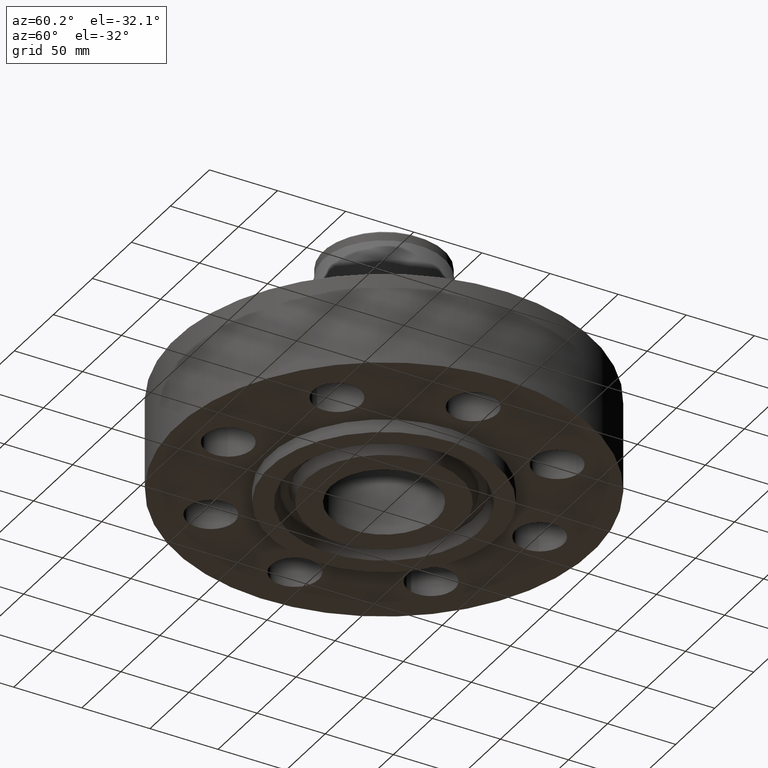
[diagram: clean part render]
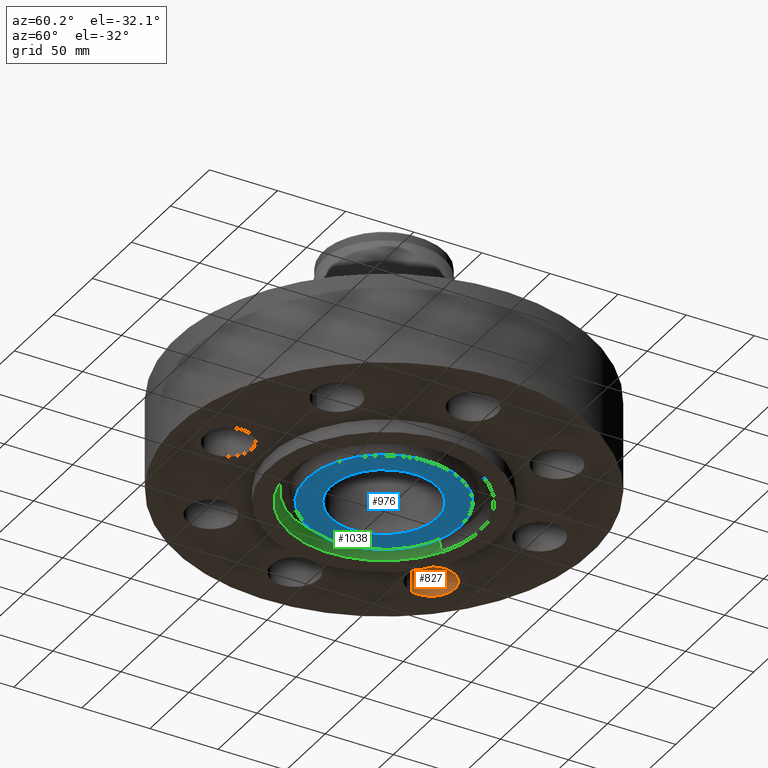
[diagram: same view with three faces highlighted in distinct colors, each labeled with its STEP entity id]
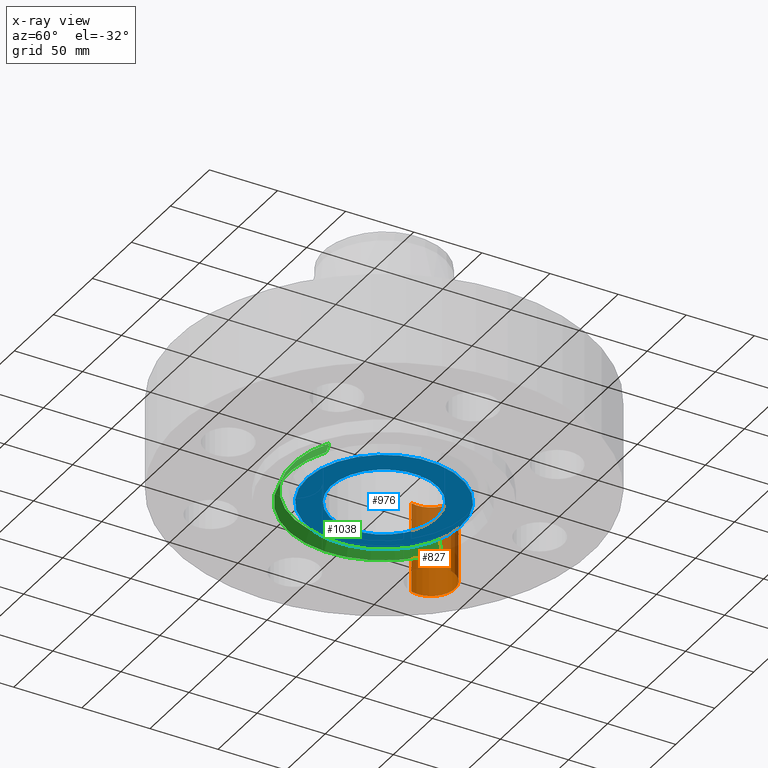
[diagram: x-ray of the same camera — body ghosted, the three highlighted faces saturated]
A machine part, auxiliary view with three faces highlighted in distinct colors.
The next image is the same camera in x-ray (body ghosted, the three faces saturated) — at least one of them is partly hidden behind the body in this view.
Their STEP definitions:

[orange] entity #827 — the highlighted cylindrical surface (edge-blend (fillet) strip) has radius 17.526 mm, axis along (0, 0, -1).
#608=AXIS2_PLACEMENT_3D('Circle Axis2P3D',#606,#607,$) ;
#800=AXIS2_PLACEMENT_3D('Cylinder Axis2P3D',#797,#798,#799) ;
#818=AXIS2_PLACEMENT_3D('Circle Axis2P3D',#816,#817,$) ;
#606=CARTESIAN_POINT('Axis2P3D Location',(-3.18198051535,3.18198051535,0.)) ;
#610=CARTESIAN_POINT('Vertex',(-3.84406976004,2.98771823886,0.)) ;
#612=CARTESIAN_POINT('Vertex',(-2.51989127066,3.37624279184,0.)) ;
#797=CARTESIAN_POINT('Axis2P3D Location',(-3.18198051535,3.18198051535,2.61606299214)) ;
#802=CARTESIAN_POINT('Line Origine',(-3.84406976004,2.98771823886,1.31000000001)) ;
#806=CARTESIAN_POINT('Vertex',(-3.84406976004,2.98771823886,2.62000000001)) ;
#809=CARTESIAN_POINT('Line Origine',(-2.51989127066,3.37624279184,1.31000000001)) ;
#813=CARTESIAN_POINT('Vertex',(-2.51989127066,3.37624279184,2.62000000001)) ;
#816=CARTESIAN_POINT('Axis2P3D Location',(-3.18198051535,3.18198051535,2.62000000001)) ;
#607=DIRECTION('Axis2P3D Direction',(0.,0.,-0.0393700787402)) ;
#798=DIRECTION('Axis2P3D Direction',(0.,0.,-0.0393700787402)) ;
#799=DIRECTION('Axis2P3D XDirection',(0.0377775444876,0.0110842335096,0.)) ;
#803=DIRECTION('Vector Direction',(0.,0.,-0.0393700787402)) ;
#810=DIRECTION('Vector Direction',(0.,0.,-0.0393700787402)) ;
#817=DIRECTION('Axis2P3D Direction',(0.,0.,-0.0393700787402)) ;
#804=VECTOR('Line Direction',#803,0.0393700787402) ;
#811=VECTOR('Line Direction',#810,0.0393700787402) ;
#822=ORIENTED_EDGE('',*,*,#808,.F.) ;
#823=ORIENTED_EDGE('',*,*,#614,.T.) ;
#824=ORIENTED_EDGE('',*,*,#815,.T.) ;
#825=ORIENTED_EDGE('',*,*,#820,.F.) ;
#827=ADVANCED_FACE('PartBody',(#826),#801,.F.) ;
#609=CIRCLE('generated circle',#608,0.690000000003) ;
#819=CIRCLE('generated circle',#818,0.690000000003) ;
#801=CYLINDRICAL_SURFACE('generated cylinder',#800,0.690000000003) ;
#614=EDGE_CURVE('',#611,#613,#609,.T.) ;
#808=EDGE_CURVE('',#611,#807,#805,.F.) ;
#815=EDGE_CURVE('',#613,#814,#812,.F.) ;
#820=EDGE_CURVE('',#807,#814,#819,.T.) ;
#821=EDGE_LOOP('',(#822,#823,#824,#825)) ;
#826=FACE_OUTER_BOUND('',#821,.T.) ;
#805=LINE('Line',#802,#804) ;
#812=LINE('Line',#809,#811) ;
#611=VERTEX_POINT('',#610) ;
#613=VERTEX_POINT('',#612) ;
#807=VERTEX_POINT('',#806) ;
#814=VERTEX_POINT('',#813) ;

[blue] entity #976 — the highlighted planar face has unit normal (0, 0, -1).
#363=AXIS2_PLACEMENT_3D('Circle Axis2P3D',#361,#362,$) ;
#387=AXIS2_PLACEMENT_3D('Circle Axis2P3D',#385,#386,$) ;
#929=AXIS2_PLACEMENT_3D('Plane Axis2P3D',#926,#927,#928) ;
#956=AXIS2_PLACEMENT_3D('Circle Axis2P3D',#954,#955,$) ;
#965=AXIS2_PLACEMENT_3D('Circle Axis2P3D',#963,#964,$) ;
#358=CARTESIAN_POINT('Vertex',(0.735438776222,1.34621164995,-0.375000000002)) ;
#361=CARTESIAN_POINT('Axis2P3D Location',(0.,0.,-0.375000000002)) ;
#365=CARTESIAN_POINT('Vertex',(-0.735438776222,-1.34621164995,-0.375000000002)) ;
#385=CARTESIAN_POINT('Axis2P3D Location',(0.,0.,-0.375000000002)) ;
#926=CARTESIAN_POINT('Axis2P3D Location',(0.,1.53400000001,-0.375000000001)) ;
#954=CARTESIAN_POINT('Axis2P3D Location',(-2.79741234551E-016,2.79741234551E-016,-0.375000000001)) ;
#958=CARTESIAN_POINT('Vertex',(-1.07127636602,1.96095823455,-0.375000000001)) ;
#960=CARTESIAN_POINT('Vertex',(1.07127636602,-1.96095823455,-0.375000000001)) ;
#963=CARTESIAN_POINT('Axis2P3D Location',(-8.39223703654E-016,0.,-0.375000000001)) ;
#362=DIRECTION('Axis2P3D Direction',(0.,0.,-0.0393700787402)) ;
#386=DIRECTION('Axis2P3D Direction',(0.,0.,-0.0393700787402)) ;
#927=DIRECTION('Axis2P3D Direction',(0.,0.,-0.0393700787402)) ;
#928=DIRECTION('Axis2P3D XDirection',(0.0393700787402,0.,0.)) ;
#955=DIRECTION('Axis2P3D Direction',(0.,0.,-0.0393700787402)) ;
#964=DIRECTION('Axis2P3D Direction',(0.,0.,-0.0393700787402)) ;
#969=ORIENTED_EDGE('',*,*,#962,.T.) ;
#970=ORIENTED_EDGE('',*,*,#967,.T.) ;
#973=ORIENTED_EDGE('',*,*,#367,.F.) ;
#974=ORIENTED_EDGE('',*,*,#389,.F.) ;
#975=FACE_BOUND('',#972,.T.) ;
#976=ADVANCED_FACE('PartBody',(#971,#975),#930,.T.) ;
#364=CIRCLE('generated circle',#363,1.53400000001) ;
#388=CIRCLE('generated circle',#387,1.53400000001) ;
#957=CIRCLE('generated circle',#956,2.23450000001) ;
#966=CIRCLE('generated circle',#965,2.23450000001) ;
#367=EDGE_CURVE('',#359,#366,#364,.T.) ;
#389=EDGE_CURVE('',#366,#359,#388,.T.) ;
#962=EDGE_CURVE('',#959,#961,#957,.T.) ;
#967=EDGE_CURVE('',#961,#959,#966,.T.) ;
#968=EDGE_LOOP('',(#969,#970)) ;
#972=EDGE_LOOP('',(#973,#974)) ;
#971=FACE_OUTER_BOUND('',#968,.T.) ;
#930=PLANE('',#929) ;
#359=VERTEX_POINT('',#358) ;
#366=VERTEX_POINT('',#365) ;
#959=VERTEX_POINT('',#958) ;
#961=VERTEX_POINT('',#960) ;

[green] entity #1038 — the highlighted conical surface has half-angle 23 deg.
#937=AXIS2_PLACEMENT_3D('Circle Axis2P3D',#935,#936,$) ;
#984=AXIS2_PLACEMENT_3D('Circle Axis2P3D',#982,#983,$) ;
#1020=AXIS2_PLACEMENT_3D('Cone Axis2P3D',#1017,#1018,#1019) ;
#935=CARTESIAN_POINT('Axis2P3D Location',(-1.39870617276E-016,-2.79741234551E-016,-0.375000000001)) ;
#939=CARTESIAN_POINT('Vertex',(1.32585132702,-2.42695457492,-0.375000000001)) ;
#941=CARTESIAN_POINT('Vertex',(-1.32585132702,2.42695457492,-0.375000000001)) ;
#982=CARTESIAN_POINT('Axis2P3D Location',(0.,0.,-0.0383839389053)) ;
#986=CARTESIAN_POINT('Vertex',(-1.25734858943,2.30156115487,-0.0383839389053)) ;
#988=CARTESIAN_POINT('Vertex',(1.25734858943,-2.30156115487,-0.0383839389053)) ;
#1017=CARTESIAN_POINT('Axis2P3D Location',(0.,0.,-0.0383839389053)) ;
#1022=CARTESIAN_POINT('Line Origine',(-1.29159995823,2.3642578649,-0.206691969453)) ;
#1027=CARTESIAN_POINT('Line Origine',(1.29159995823,-2.3642578649,-0.206691969453)) ;
#936=DIRECTION('Axis2P3D Direction',(0.,0.,-0.0393700787402)) ;
#983=DIRECTION('Axis2P3D Direction',(0.,0.,0.0393700787402)) ;
#1018=DIRECTION('Axis2P3D Direction',(-0.,-0.,-0.0393700787402)) ;
#1019=DIRECTION('Axis2P3D XDirection',(-0.0188750212049,0.0345504945626,0.)) ;
#1023=DIRECTION('Vector Direction',(-0.00737505833565,0.0134999537303,-0.0362403485611)) ;
#1028=DIRECTION('Vector Direction',(0.00737505833565,-0.0134999537303,-0.0362403485611)) ;
#1024=VECTOR('Line Direction',#1023,0.0393700787402) ;
#1029=VECTOR('Line Direction',#1028,0.0393700787402) ;
#1033=ORIENTED_EDGE('',*,*,#943,.T.) ;
#1034=ORIENTED_EDGE('',*,*,#1026,.T.) ;
#1035=ORIENTED_EDGE('',*,*,#990,.T.) ;
#1036=ORIENTED_EDGE('',*,*,#1031,.F.) ;
#1038=ADVANCED_FACE('PartBody',(#1037),#1021,.F.) ;
#938=CIRCLE('generated circle',#937,2.76550000001) ;
#985=CIRCLE('generated circle',#984,2.62261495934) ;
#1021=CONICAL_SURFACE('Cone',#1020,2.62261495934,0.401425727959) ;
#943=EDGE_CURVE('',#940,#942,#938,.T.) ;
#990=EDGE_CURVE('',#987,#989,#985,.T.) ;
#1026=EDGE_CURVE('',#942,#987,#1025,.F.) ;
#1031=EDGE_CURVE('',#940,#989,#1030,.F.) ;
#1032=EDGE_LOOP('',(#1033,#1034,#1035,#1036)) ;
#1037=FACE_OUTER_BOUND('',#1032,.T.) ;
#1025=LINE('Line',#1022,#1024) ;
#1030=LINE('Line',#1027,#1029) ;
#940=VERTEX_POINT('',#939) ;
#942=VERTEX_POINT('',#941) ;
#987=VERTEX_POINT('',#986) ;
#989=VERTEX_POINT('',#988) ;